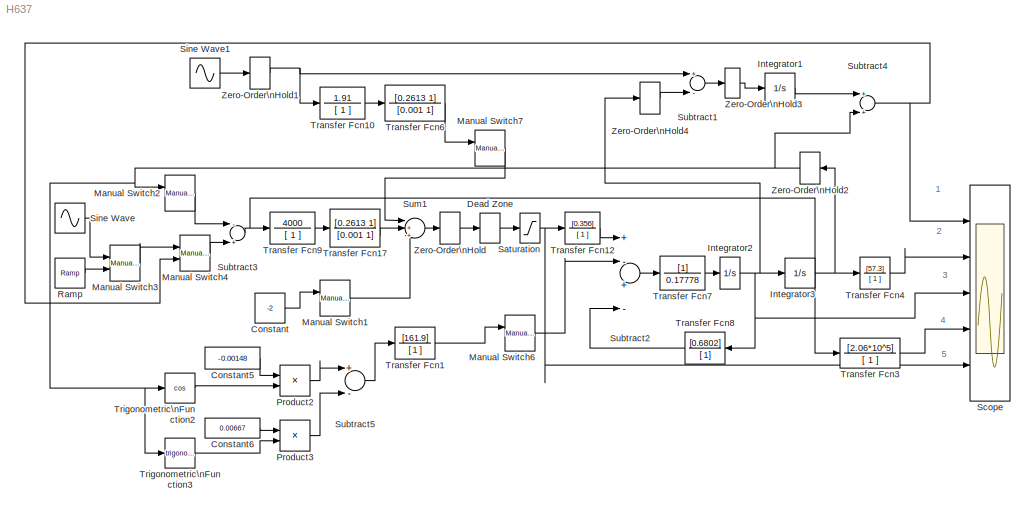
MODEL H637
KIND model
BLOCK [Constant] Constant
  SID = 1
  Value = -2
BLOCK [Constant] Constant5
  SID = 2
  Value = -0.00148
BLOCK [Constant] Constant6
  SID = 3
  Value = 0.00667
BLOCK [DeadZone] Dead Zone
  LowerValue = -1.4
  SID = 64
  UpperValue = 1.4
BLOCK [Integrator] Integrator1
  Ports = [1, 1]
  SID = 6
BLOCK [Integrator] Integrator2
  Ports = [1, 1]
  SID = 7
BLOCK [Integrator] Integrator3
  Ports = [1, 1]
  SID = 8
BLOCK [Reference] Manual Switch1  REF=simulink/Signal\nRouting/Manual Switch
  FunctionWithSeparateData = off
  GeneratePreprocessorConditionals = off
  Ports = [2, 1]
  RTWMemSecDataConstants = Inherit from model
  RTWMemSecDataInternal = Inherit from model
  RTWMemSecDataParameters = Inherit from model
  RTWMemSecFuncExecute = Inherit from model
  RTWMemSecFuncInitTerm = Inherit from model
  SID = 9
  ShowPortLabels = FromPortIcon
  SourceBlock = simulink/Signal\nRouting/Manual Switch
  SourceType = Manual Switch
  SystemSampleTime = -1
  action = 0
  sw = 1
  varsize = off
BLOCK [Reference] Manual Switch2  REF=simulink/Signal\nRouting/Manual Switch
  FunctionWithSeparateData = off
  GeneratePreprocessorConditionals = off
  Ports = [2, 1]
  RTWMemSecDataConstants = Inherit from model
  RTWMemSecDataInternal = Inherit from model
  RTWMemSecDataParameters = Inherit from model
  RTWMemSecFuncExecute = Inherit from model
  RTWMemSecFuncInitTerm = Inherit from model
  SID = 10
  ShowPortLabels = FromPortIcon
  SourceBlock = simulink/Signal\nRouting/Manual Switch
  SourceType = Manual Switch
  SystemSampleTime = -1
  action = 0
  sw = 1
  varsize = off
BLOCK [Reference] Manual Switch3  REF=simulink/Signal\nRouting/Manual Switch
  FunctionWithSeparateData = off
  GeneratePreprocessorConditionals = off
  Ports = [2, 1]
  RTWMemSecDataConstants = Inherit from model
  RTWMemSecDataInternal = Inherit from model
  RTWMemSecDataParameters = Inherit from model
  RTWMemSecFuncExecute = Inherit from model
  RTWMemSecFuncInitTerm = Inherit from model
  SID = 11
  ShowPortLabels = FromPortIcon
  SourceBlock = simulink/Signal\nRouting/Manual Switch
  SourceType = Manual Switch
  SystemSampleTime = -1
  action = 0
  sw = 1
  varsize = off
BLOCK [Reference] Manual Switch4  REF=simulink/Signal\nRouting/Manual Switch
  FunctionWithSeparateData = off
  GeneratePreprocessorConditionals = off
  Ports = [2, 1]
  RTWMemSecDataConstants = Inherit from model
  RTWMemSecDataInternal = Inherit from model
  RTWMemSecDataParameters = Inherit from model
  RTWMemSecFuncExecute = Inherit from model
  RTWMemSecFuncInitTerm = Inherit from model
  SID = 12
  ShowPortLabels = FromPortIcon
  SourceBlock = simulink/Signal\nRouting/Manual Switch
  SourceType = Manual Switch
  SystemSampleTime = -1
  action = 0
  sw = 0
  varsize = off
BLOCK [Reference] Manual Switch6  REF=simulink/Signal\nRouting/Manual Switch
  FunctionWithSeparateData = off
  GeneratePreprocessorConditionals = off
  Ports = [2, 1]
  RTWMemSecDataConstants = Inherit from model
  RTWMemSecDataInternal = Inherit from model
  RTWMemSecDataParameters = Inherit from model
  RTWMemSecFuncExecute = Inherit from model
  RTWMemSecFuncInitTerm = Inherit from model
  SID = 13
  ShowPortLabels = FromPortIcon
  SourceBlock = simulink/Signal\nRouting/Manual Switch
  SourceType = Manual Switch
  SystemSampleTime = -1
  action = 0
  sw = 1
  varsize = off
BLOCK [Reference] Manual Switch7  REF=simulink/Signal\nRouting/Manual Switch
  FunctionWithSeparateData = off
  GeneratePreprocessorConditionals = off
  Ports = [2, 1]
  RTWMemSecDataConstants = Inherit from model
  RTWMemSecDataInternal = Inherit from model
  RTWMemSecDataParameters = Inherit from model
  RTWMemSecFuncExecute = Inherit from model
  RTWMemSecFuncInitTerm = Inherit from model
  SID = 55
  ShowPortLabels = FromPortIcon
  SourceBlock = simulink/Signal\nRouting/Manual Switch
  SourceType = Manual Switch
  SystemSampleTime = -1
  action = 0
  sw = 1
  varsize = off
BLOCK [Product] Product2
  InputSameDT = off
  OutDataTypeStr = Inherit: Inherit via internal rule
  Ports = [2, 1]
  SID = 15
  SaturateOnIntegerOverflow = off
BLOCK [Product] Product3
  InputSameDT = off
  OutDataTypeStr = Inherit: Inherit via internal rule
  Ports = [2, 1]
  SID = 16
  SaturateOnIntegerOverflow = off
BLOCK [Reference] Ramp  REF=simulink/Sources/Ramp
  FunctionWithSeparateData = off
  GeneratePreprocessorConditionals = off
  Ports = [0, 1]
  RTWMemSecDataConstants = Inherit from model
  RTWMemSecDataInternal = Inherit from model
  RTWMemSecDataParameters = Inherit from model
  RTWMemSecFuncExecute = Inherit from model
  RTWMemSecFuncInitTerm = Inherit from model
  SID = 17
  ShowPortLabels = FromPortIcon
  SourceBlock = simulink/Sources/Ramp
  SourceType = Ramp
  SystemSampleTime = -1
  VectorParams1D = on
  X0 = 0
  slope = 1
  start = 0
BLOCK [Saturate] Saturation
  InputPortMap = u0
  LowerLimit = -27
  Ports = [1, 1]
  SID = 18
  UpperLimit = 27
BLOCK [Scope] Scope
  DataFormat = StructureWithTime
  Floating = off
  MaxDataPoints = 5000000
  NumInputPorts = 5
  Ports = [5]
  SID = 19
  SampleTime = 0
  TimeRange = 5
  YMax = 30~2500~1.5~30~2500
  YMin = -30~-500~-1.5~-30~-500
  ZoomMode = yonly
BLOCK [Sin] Sine Wave
  Amplitude = 0.5
  Frequency = 2
  Ports = [0, 1]
  SID = 21
  SampleTime = 0
BLOCK [Sin] Sine Wave1
  Frequency = 2
  Phase = 1.57
  Ports = [0, 1]
  SID = 43
  SampleTime = 0
BLOCK [Sum] Subtract1
  InputSameDT = off
  Inputs = +-
  OutDataTypeStr = Inherit: Inherit via internal rule
  Ports = [2, 1]
  SID = 22
  SaturateOnIntegerOverflow = off
BLOCK [Sum] Subtract2
  InputSameDT = off
  Inputs = +-+-
  OutDataTypeStr = Inherit: Inherit via internal rule
  Ports = [4, 1]
  SID = 23
  SaturateOnIntegerOverflow = off
BLOCK [Sum] Subtract3
  InputSameDT = off
  Inputs = -+
  OutDataTypeStr = Inherit: Inherit via internal rule
  Ports = [2, 1]
  SID = 24
  SaturateOnIntegerOverflow = off
BLOCK [Sum] Subtract4
  InputSameDT = off
  OutDataTypeStr = Inherit: Inherit via internal rule
  Ports = [2, 1]
  SID = 46
  SaturateOnIntegerOverflow = off
BLOCK [Sum] Subtract5
  InputSameDT = off
  Inputs = +-
  OutDataTypeStr = Inherit: Inherit via internal rule
  Ports = [2, 1]
  SID = 25
  SaturateOnIntegerOverflow = off
BLOCK [Sum] Sum1
  IconShape = round
  InputSameDT = off
  Inputs = |+++
  OutDataTypeStr = Inherit: Inherit via internal rule
  Ports = [3, 1]
  SID = 26
  SaturateOnIntegerOverflow = off
BLOCK [TransferFcn] Transfer Fcn1
  Denominator = [ 1 ]
  Numerator = [161.9]
  SID = 27
BLOCK [TransferFcn] Transfer Fcn10
  Denominator = [ 1 ]
  Numerator = 1.91
  SID = 52
BLOCK [TransferFcn] Transfer Fcn12
  Denominator = [ 1 ]
  Numerator = [0.356]
  SID = 28
BLOCK [TransferFcn] Transfer Fcn17
  Denominator = [0.001 1]
  Numerator = [0.2613 1]
  SID = 29
BLOCK [TransferFcn] Transfer Fcn3
  Denominator = [ 1 ]
  Numerator = [2.06*10^5]
  SID = 31
BLOCK [TransferFcn] Transfer Fcn4
  Denominator = [ 1 ]
  Numerator = [57.3]
  SID = 32
BLOCK [TransferFcn] Transfer Fcn6
  Denominator = [0.001 1]
  Numerator = [0.2613 1]
  SID = 51
BLOCK [TransferFcn] Transfer Fcn7
  Denominator = 0.17778
  SID = 33
BLOCK [TransferFcn] Transfer Fcn8
  Denominator = [ 1]
  Numerator = [0.6802]
  SID = 34
BLOCK [TransferFcn] Transfer Fcn9
  Denominator = [ 1 ]
  Numerator = 4000
  SID = 35
BLOCK [Trigonometry] Trigonometric\nFunction2
  Operator = cos
  Ports = [1, 1]
  SID = 36
BLOCK [Trigonometry] Trigonometric\nFunction3
  Ports = [1, 1]
  SID = 37
BLOCK [ZeroOrderHold] Zero-Order\nHold
  SID = 38
  SampleTime = 1/19531.25
BLOCK [ZeroOrderHold] Zero-Order\nHold1
  SID = 54
  SampleTime = 1/39062.5
BLOCK [ZeroOrderHold] Zero-Order\nHold2
  SID = 62
  SampleTime = 1/25000
BLOCK [ZeroOrderHold] Zero-Order\nHold3
  SID = 50
  SampleTime = 1/1000
BLOCK [ZeroOrderHold] Zero-Order\nHold4
  SID = 63
  SampleTime = 1/25000
ANNOTATION (root): 1
ANNOTATION (root): 2
ANNOTATION (root): 3
ANNOTATION (root): 4
ANNOTATION (root): 5
LINE Constant5:1 -> Product2:1
LINE Constant6:1 -> Product3:1
LINE Constant:1 -> Manual Switch1:1
LINE Dead Zone:1 -> Saturation:1
LINE Integrator1:1 -> Subtract4:1
NET Integrator2:1 -> Integrator3:1, Scope:3, Transfer Fcn8:1, Zero-Order\nHold4:1
NET Integrator3:1 -> Transfer Fcn4:1, Zero-Order\nHold2:1
LINE Manual Switch1:1 -> Sum1:3
LINE Manual Switch2:1 -> Subtract3:1
LINE Manual Switch3:1 -> Manual Switch4:1
LINE Manual Switch4:1 -> Subtract3:2
LINE Manual Switch6:1 -> Subtract2:2
LINE Manual Switch7:1 -> Sum1:1
LINE Product2:1 -> Subtract5:1
LINE Product3:1 -> Subtract5:2
LINE Ramp:1 -> Manual Switch3:2
NET Saturation:1 -> Scope:5, Transfer Fcn12:1
LINE Sine Wave1:1 -> Zero-Order\nHold1:1
LINE Sine Wave:1 -> Manual Switch3:1
LINE Subtract1:1 -> Zero-Order\nHold3:1
LINE Subtract2:1 -> Transfer Fcn7:1
NET Subtract3:1 -> Transfer Fcn3:1, Transfer Fcn9:1
NET Subtract4:1 -> Manual Switch4:2, Scope:1
LINE Subtract5:1 -> Transfer Fcn1:1
LINE Sum1:1 -> Zero-Order\nHold:1
LINE Transfer Fcn10:1 -> Transfer Fcn6:1
LINE Transfer Fcn12:1 -> Subtract2:1
LINE Transfer Fcn17:1 -> Sum1:2
LINE Transfer Fcn1:1 -> Manual Switch6:1
LINE Transfer Fcn3:1 -> Scope:4
LINE Transfer Fcn4:1 -> Scope:2
LINE Transfer Fcn6:1 -> Manual Switch7:1
LINE Transfer Fcn7:1 -> Integrator2:1
LINE Transfer Fcn8:1 -> Subtract2:4
LINE Transfer Fcn9:1 -> Transfer Fcn17:1
LINE Trigonometric\nFunction2:1 -> Product2:2
LINE Trigonometric\nFunction3:1 -> Product3:2
NET Zero-Order\nHold1:1 -> Subtract1:1, Transfer Fcn10:1
NET Zero-Order\nHold2:1 -> Manual Switch2:1, Subtract4:2, Trigonometric\nFunction2:1, Trigonometric\nFunction3:1
LINE Zero-Order\nHold3:1 -> Integrator1:1
LINE Zero-Order\nHold4:1 -> Subtract1:2
LINE Zero-Order\nHold:1 -> Dead Zone:1
note: NET lines group one-source signal fan-out (src -> all destinations, sorted); 1:1 wires keep LINE
